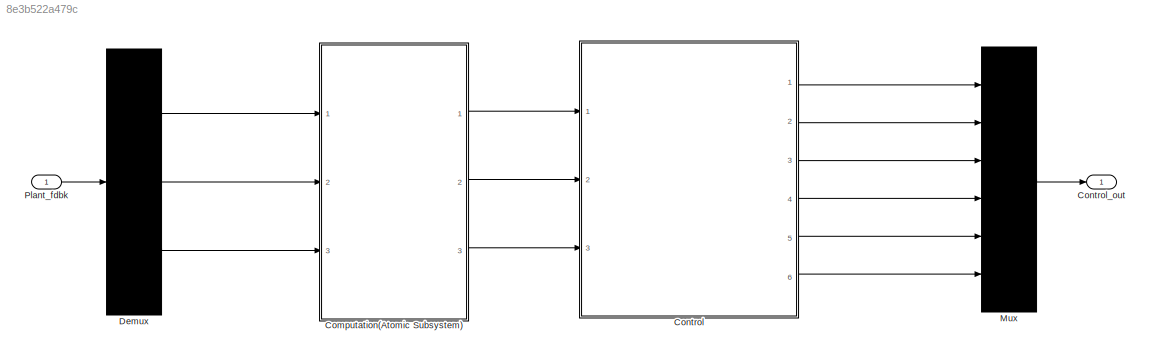
MODEL slx_8e3b522a479c
KIND model
CONFIG AbsTol = auto
CONFIG EnableMultiTasking = off
CONFIG FixedStep = 0.25
CONFIG MaxStep = auto
CONFIG MinStep = auto
CONFIG RelTol = 1e-3
CONFIG SampleTimeConstraint = Unconstrained
CONFIG Solver = FixedStepDiscrete
CONFIG SolverName = FixedStepDiscrete
CONFIG StartTime = 0.0
CONFIG StopTime = 40
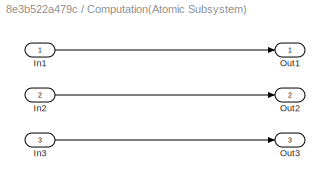
BLOCK [SubSystem] Computation(Atomic Subsystem)
  Ports = [3, 3]
  RequestExecContextInheritance = off
  TreatAsAtomicUnit = on
BLOCK [Inport] Computation(Atomic Subsystem)/In1
  IconDisplay = Port number
BLOCK [Inport] Computation(Atomic Subsystem)/In2
  IconDisplay = Port number
  Port = 2
BLOCK [Inport] Computation(Atomic Subsystem)/In3
  IconDisplay = Port number
  Port = 3
BLOCK [Outport] Computation(Atomic Subsystem)/Out1
  IconDisplay = Port number
BLOCK [Outport] Computation(Atomic Subsystem)/Out2
  IconDisplay = Port number
  Port = 2
BLOCK [Outport] Computation(Atomic Subsystem)/Out3
  IconDisplay = Port number
  Port = 3
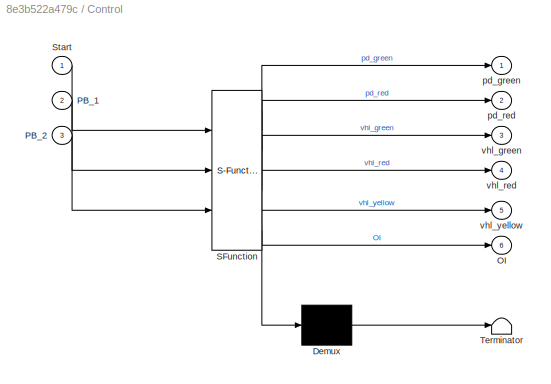
BLOCK [SubSystem] Control
  BlockKeywords = __PRM__SERIALIZED__DATA__:Stateflow Chart,Stateflow Diagram
  ErrorFcn = Stateflow.Translate.translate
  PermitHierarchicalResolution = ExplicitOnly
  Ports = [3, 6]
  RequestExecContextInheritance = off
  SFBlockType = Chart
  TreatAsAtomicUnit = on
BLOCK [Demux] Control/ Demux 
  Outputs = 1
  Ports = [1, 1]
BLOCK [S-Function] Control/ SFunction 
  EnableBusSupport = on
  FunctionName = sf_sfun
  PortCounts = [3 7]
  Ports = [3, 7]
  SFcnIsStateOwnerBlock = off
  SFunctionDeploymentMode = off
  Tag = Stateflow S-Function Contoller 3
BLOCK [Terminator] Control/ Terminator 
BLOCK [Outport] Control/OI
  IconDisplay = Port number
  Port = 6
BLOCK [Inport] Control/PB_1
  IconDisplay = Port number
  Port = 2
BLOCK [Inport] Control/PB_2
  IconDisplay = Port number
  Port = 3
BLOCK [Inport] Control/Start
  IconDisplay = Port number
BLOCK [Outport] Control/pd_green
  IconDisplay = Port number
BLOCK [Outport] Control/pd_red
  IconDisplay = Port number
  Port = 2
BLOCK [Outport] Control/vhl_green
  IconDisplay = Port number
  Port = 3
BLOCK [Outport] Control/vhl_red
  IconDisplay = Port number
  Port = 4
BLOCK [Outport] Control/vhl_yellow
  IconDisplay = Port number
  Port = 5
BLOCK [Outport] Control_out
  IconDisplay = Port number
BLOCK [Demux] Demux
  Outputs = 3
  Ports = [1, 3]
BLOCK [Mux] Mux
  Inputs = 6
  Ports = [6, 1]
BLOCK [Inport] Plant_fdbk
  IconDisplay = Port number
LINE Computation(Atomic Subsystem)/In1:1 -> Computation(Atomic Subsystem)/Out1:1
LINE Computation(Atomic Subsystem)/In2:1 -> Computation(Atomic Subsystem)/Out2:1
LINE Computation(Atomic Subsystem)/In3:1 -> Computation(Atomic Subsystem)/Out3:1
LINE Computation(Atomic Subsystem):1 -> Control:1
LINE Computation(Atomic Subsystem):2 -> Control:2
LINE Computation(Atomic Subsystem):3 -> Control:3
LINE Control:1 -> Mux:1
LINE Control:2 -> Mux:2
LINE Control:3 -> Mux:3
LINE Control:4 -> Mux:4
LINE Control:5 -> Mux:5
LINE Control:6 -> Mux:6
LINE Demux:1 -> Computation(Atomic Subsystem):1
LINE Demux:2 -> Computation(Atomic Subsystem):2
LINE Demux:3 -> Computation(Atomic Subsystem):3
LINE Mux:1 -> Control_out:1
LINE Plant_fdbk:1 -> Demux:1
CHART Control states=6 transitions=17
  STATE_LABEL 'Intit\nentry:\nx = 0;\nwait_cross = 20;\nvhl_green = 1;\nvhl_yellow = 1;\nvhl_red = 1;\npd_green = 0;\npd_red = 0;\nOI = 0;'
  STATE_LABEL '[WAIT_CROSS,oi] = check_PB(pb_1, pb_2)'
  STATE_LABEL '{WAIT_CROSS=20;oi=0;}% check_PB'
  STATE_LABEL '[(x == 0 & pb_1 == 1 | pb_2 == 1)]'
  STATE_LABEL '{WAIT_CROSS = 15; oi = 1; x=1;}'
  STATE_LABEL '[x == 1]'
  STATE_LABEL '{WAIT_CROSS = 15; oi = 1;}'
  STATE_LABEL 'vhl_stopp\nentry:\nvhl_green = 0;\nvhl_yellow = 0;\nvhl_red = 1;\npd_green = 1;\npd_red = 0;\nOI = 0;'
  STATE_LABEL 'vhl_pre_stopp\nentry:\nvhl_green = 0;\nvhl_yellow = 1;\nvhl_red = 0;\npd_green = 0;\npd_red =1;\nduring:\n[wait_cross,OI] = check_PB(PB_1,PB_2);\n'
  STATE_LABEL 'vhl_pre_cross\nentry:\nvhl_green = 0;\nvhl_yellow = 1;\nvhl_red = 1;\npd_green = 0;\npd_red = 1;\nduring:\n[wait_cross, OI] = check_PB(PB_1,PB_2);\n'
  STATE_LABEL 'vlh_cross\nentry:\nvhl_green = 1;\nvhl_yellow = 0;\nvhl_red = 0;\npd_green = 0;\npd_red = 1;\nduring:\n[wait_cross,OI] = check_PB(PB_1,PB_2);\n'
